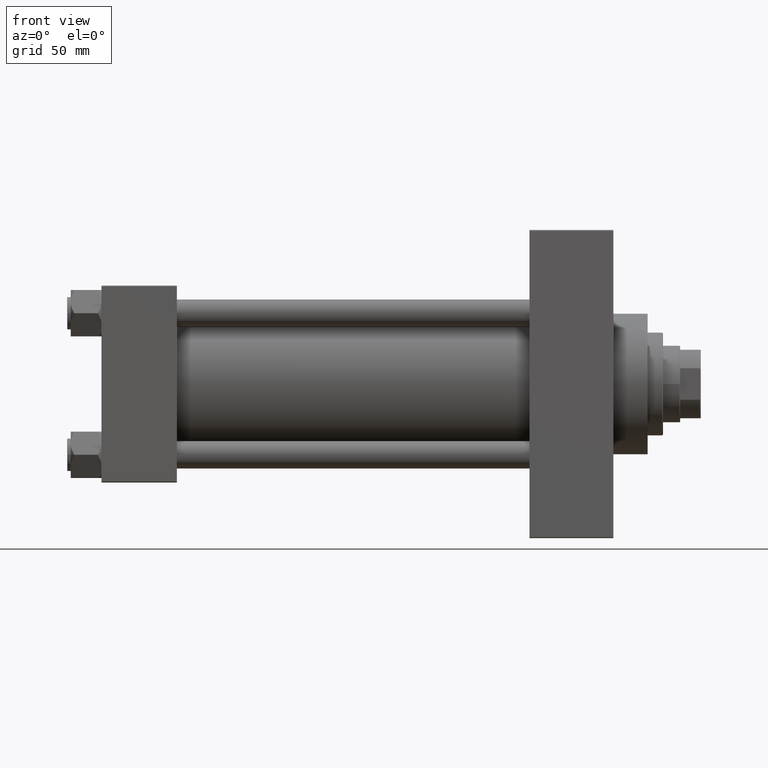
[diagram: clean part render]
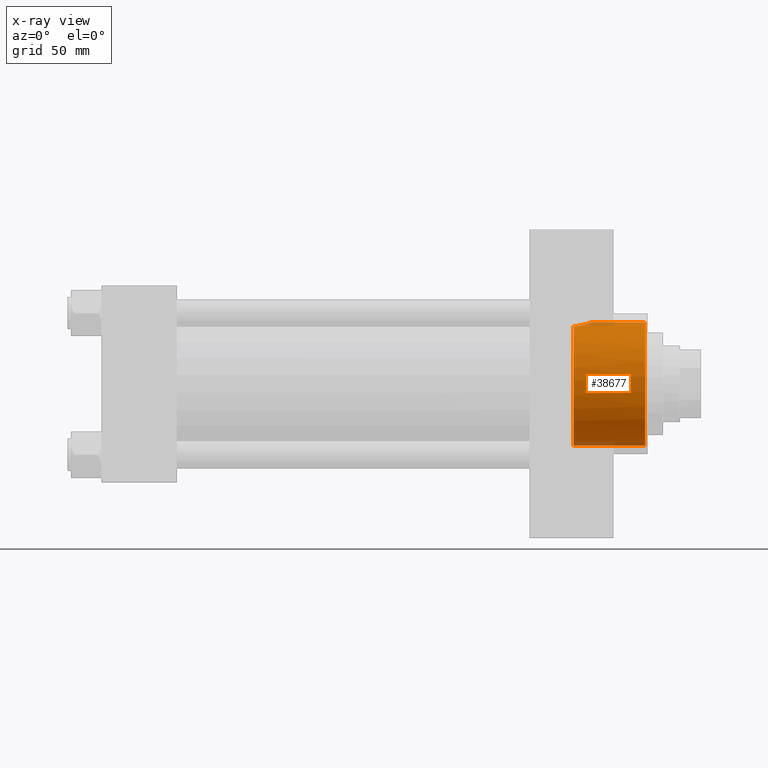
[diagram: x-ray — body ghosted, one internal face saturated and labeled with its STEP entity id]
A machine part, front view, then the same camera in x-ray: the body is ghosted and one INTERNAL B-rep face — a face not visible from any outside direction — is saturated and labeled: STEP entity #38677.
In plain terms, the highlighted cylindrical surface (partial cylindrical patch) has radius 36 mm, axis along (1, 0, 0).
Its self-contained STEP definition (entity closure, byte-faithful):
#283 = CARTESIAN_POINT ( 'NONE',  ( 275.7400000000000091, 0.000000000000000000, -36.00000000000000000 ) ) ;
#2190 = VERTEX_POINT ( 'NONE', #44540 ) ;
#2300 = CIRCLE ( 'NONE', #30157, 36.00000000000000000 ) ;
#3023 = CYLINDRICAL_SURFACE ( 'NONE', #11227, 36.00000000000000000 ) ;
#3385 = CARTESIAN_POINT ( 'NONE',  ( 277.5622627804117428, -12.41346128962092443, 33.79242230791056301 ) ) ;
#3632 = CARTESIAN_POINT ( 'NONE',  ( 284.1369082302657034, -7.132913908064977271, 35.28770313236167055 ) ) ;
#4088 = VECTOR ( 'NONE', #43978, 1000.000000000000000 ) ;
#4113 = CARTESIAN_POINT ( 'NONE',  ( 285.1948937127547765, -5.159834589306234065, 35.63551938799943741 ) ) ;
#4344 = VERTEX_POINT ( 'NONE', #28843 ) ;
#4359 = CARTESIAN_POINT ( 'NONE',  ( 279.2689392453521009, -11.66300537238691959, 34.06086853725206964 ) ) ;
#7747 = CARTESIAN_POINT ( 'NONE',  ( 282.7829955645538007, -8.922873027715082728, 34.88174282732674669 ) ) ;
#8402 = CARTESIAN_POINT ( 'NONE',  ( 275.7400000000000091, 0.000000000000000000, -36.00000000000000000 ) ) ;
#11227 = AXIS2_PLACEMENT_3D ( 'NONE', #37319, #32314, #15280 ) ;
#11377 = CARTESIAN_POINT ( 'NONE',  ( 283.7144084780976527, -7.753104972441691167, 35.15664683191295836 ) ) ;
#11460 = CARTESIAN_POINT ( 'NONE',  ( 275.7400000000000091, 0.000000000000000000, 0.000000000000000000 ) ) ;
#11612 = CARTESIAN_POINT ( 'NONE',  ( 284.8836492013383577, -5.839896060611117434, 35.52932100949514194 ) ) ;
#11738 = ORIENTED_EDGE ( 'NONE', *, *, #19773, .F. ) ;
#12530 = ORIENTED_EDGE ( 'NONE', *, *, #17395, .T. ) ;
#12869 = VERTEX_POINT ( 'NONE', #37261 ) ;
#14511 = CARTESIAN_POINT ( 'NONE',  ( 280.2234778375481028, -11.07831175427974379, 34.25365854375354502 ) ) ;
#14669 = LINE ( 'NONE', #39380, #4088 ) ;
#15280 = DIRECTION ( 'NONE',  ( 0.000000000000000000, 0.000000000000000000, -1.000000000000000000 ) ) ;
#15460 = CARTESIAN_POINT ( 'NONE',  ( 280.5356348427428657, -10.86845247487192090, 34.32099817610180281 ) ) ;
#15910 = DIRECTION ( 'NONE',  ( 1.000000000000000000, 0.000000000000000000, 0.000000000000000000 ) ) ;
#17395 = EDGE_CURVE ( 'NONE', #2190, #12869, #25455, .T. ) ;
#17898 = EDGE_LOOP ( 'NONE', ( #34756, #27604, #12530, #34813, #11738 ) ) ;
#18380 = CARTESIAN_POINT ( 'NONE',  ( 276.1130436000876784, -12.85390086390294151, 33.62713791769438387 ) ) ;
#19773 = EDGE_CURVE ( 'NONE', #4344, #37083, #2300, .T. ) ;
#20483 = CARTESIAN_POINT ( 'NONE',  ( 286.2200000000000273, 4.408731805096607676E-15, 36.00000000000000000 ) ) ;
#22506 = CARTESIAN_POINT ( 'NONE',  ( 282.2683236211794338, -9.456123306897660896, 34.73961675537525196 ) ) ;
#23904 = CARTESIAN_POINT ( 'NONE',  ( 317.5000000000000000, 0.000000000000000000, 0.000000000000000000 ) ) ;
#24676 = AXIS2_PLACEMENT_3D ( 'NONE', #23904, #15910, #46165 ) ;
#25230 = B_SPLINE_CURVE_WITH_KNOTS ( 'NONE', 3,
 ( #30031, #44779, #47686, #44287, #36784, #40906, #44054, #4113, #11612, #44539, #3632, #11377, #25903, #7747, #22506, #37506, #40414, #15460, #14511, #4359, #37027, #3385, #33398, #37267, #18380, #26623 ),
 .UNSPECIFIED., .F., .F.,
 ( 4, 2, 2, 2, 2, 2, 2, 2, 2, 2, 2, 2, 4 ),
 ( 0.01810032772820881902, 0.02036086973656279359, 0.02149114074073979821, 0.02262141174491679937, 0.02488195375327080516, 0.02601222475744784796, 0.02714249576162488728, 0.02940303776997887225, 0.03053330877415585953, 0.03166357977833285375, 0.03392412178668670342, 0.03505439279086354498, 0.03618466379504039349 ),
 .UNSPECIFIED. ) ;
#25455 = CIRCLE ( 'NONE', #24676, 36.00000000000000000 ) ;
#25903 = CARTESIAN_POINT ( 'NONE',  ( 283.4891427515922260, -8.055144359843696478, 35.08850325643999213 ) ) ;
#26229 = DIRECTION ( 'NONE',  ( 1.000000000000000000, 0.000000000000000000, 0.000000000000000000 ) ) ;
#26623 = CARTESIAN_POINT ( 'NONE',  ( 275.7400000000000091, -12.93293470176046611, 33.59671412504502541 ) ) ;
#27604 = ORIENTED_EDGE ( 'NONE', *, *, #28857, .T. ) ;
#28843 = CARTESIAN_POINT ( 'NONE',  ( 275.7400000000000091, -12.93293470176046611, 33.59671412504502541 ) ) ;
#28857 = EDGE_CURVE ( 'NONE', #31635, #2190, #14669, .T. ) ;
#29849 = LINE ( 'NONE', #283, #47606 ) ;
#30031 = CARTESIAN_POINT ( 'NONE',  ( 286.2200000000000273, 4.408731805096607676E-15, 36.00000000000000000 ) ) ;
#30157 = AXIS2_PLACEMENT_3D ( 'NONE', #11460, #26229, #41947 ) ;
#31635 = VERTEX_POINT ( 'NONE', #20483 ) ;
#32314 = DIRECTION ( 'NONE',  ( 1.000000000000000000, -0.000000000000000000, -0.000000000000000000 ) ) ;
#33398 = CARTESIAN_POINT ( 'NONE',  ( 277.2076088460675578, -12.53825874082046887, 33.74619856893892944 ) ) ;
#34756 = ORIENTED_EDGE ( 'NONE', *, *, #41954, .F. ) ;
#34813 = ORIENTED_EDGE ( 'NONE', *, *, #36477, .F. ) ;
#36477 = EDGE_CURVE ( 'NONE', #37083, #12869, #29849, .T. ) ;
#36784 = CARTESIAN_POINT ( 'NONE',  ( 285.8814408249626240, -2.996635129533371522, 35.87694312671834496 ) ) ;
#37027 = CARTESIAN_POINT ( 'NONE',  ( 278.6039743856110817, -11.99680468088063101, 33.94354112271071955 ) ) ;
#37083 = VERTEX_POINT ( 'NONE', #8402 ) ;
#37261 = CARTESIAN_POINT ( 'NONE',  ( 317.5000000000000000, 0.000000000000000000, -36.00000000000000000 ) ) ;
#37267 = CARTESIAN_POINT ( 'NONE',  ( 276.4827252521804439, -12.75862568112612649, 33.66350131574143489 ) ) ;
#37319 = CARTESIAN_POINT ( 'NONE',  ( 275.7400000000000091, 0.000000000000000000, 0.000000000000000000 ) ) ;
#37506 = CARTESIAN_POINT ( 'NONE',  ( 281.4301524439943023, -10.19013505585469659, 34.52862519156883536 ) ) ;
#38677 = ADVANCED_FACE ( 'NONE', ( #45649 ), #3023, .F. ) ;
#39380 = CARTESIAN_POINT ( 'NONE',  ( 275.7400000000000091, 4.408728476930470856E-15, 36.00000000000000000 ) ) ;
#40414 = CARTESIAN_POINT ( 'NONE',  ( 281.1396695021039136, -10.42376285600498598, 34.45866136291866155 ) ) ;
#40906 = CARTESIAN_POINT ( 'NONE',  ( 285.6891278366015854, -3.727918262643104441, 35.80834393886973999 ) ) ;
#41947 = DIRECTION ( 'NONE',  ( 0.000000000000000000, 0.000000000000000000, -1.000000000000000000 ) ) ;
#41954 = EDGE_CURVE ( 'NONE', #31635, #4344, #25230, .T. ) ;
#43978 = DIRECTION ( 'NONE',  ( 1.000000000000000000, -0.000000000000000000, -0.000000000000000000 ) ) ;
#44054 = CARTESIAN_POINT ( 'NONE',  ( 285.5762609626180506, -4.092528755394253537, 35.76841822259746806 ) ) ;
#44287 = CARTESIAN_POINT ( 'NONE',  ( 285.9615557504130265, -2.628343228240515916, 35.90584824798535379 ) ) ;
#44539 = CARTESIAN_POINT ( 'NONE',  ( 284.3340033522583212, -6.815280192024304462, 35.35054759480855324 ) ) ;
#44540 = CARTESIAN_POINT ( 'NONE',  ( 317.5000000000000000, 4.408728476930470856E-15, 36.00000000000000000 ) ) ;
#44779 = CARTESIAN_POINT ( 'NONE',  ( 286.2200000000000841, -0.7632647160769693295, 36.00000000000000711 ) ) ;
#45649 = FACE_OUTER_BOUND ( 'NONE', #17898, .T. ) ;
#46165 = DIRECTION ( 'NONE',  ( 0.000000000000000000, 0.000000000000000000, -1.000000000000000000 ) ) ;
#47259 = DIRECTION ( 'NONE',  ( 1.000000000000000000, -0.000000000000000000, -0.000000000000000000 ) ) ;
#47606 = VECTOR ( 'NONE', #47259, 1000.000000000000000 ) ;
#47686 = CARTESIAN_POINT ( 'NONE',  ( 286.1544019816762443, -1.515576091947747228, 35.97576316411753794 ) ) ;